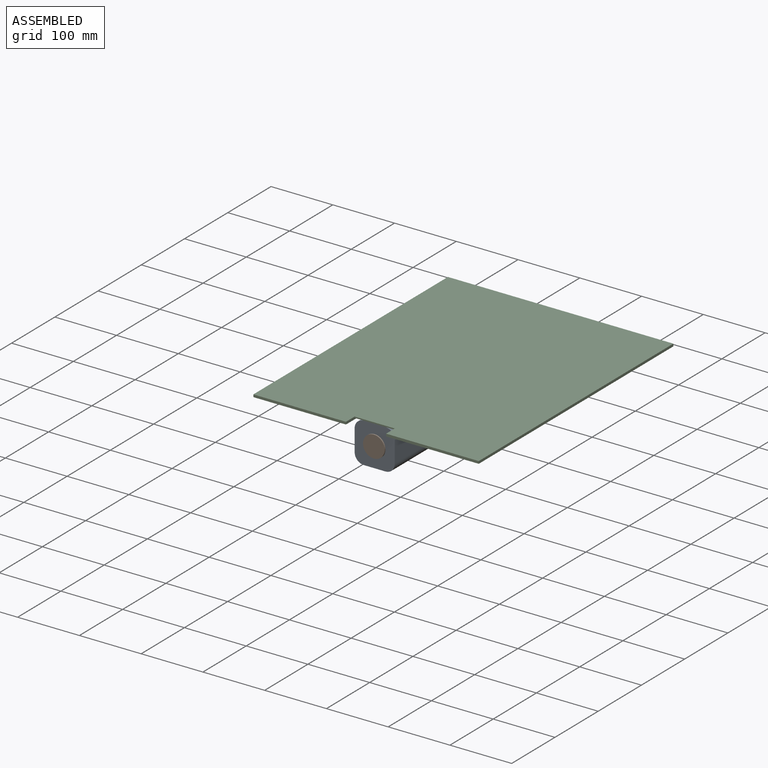
[diagram: assembled view]
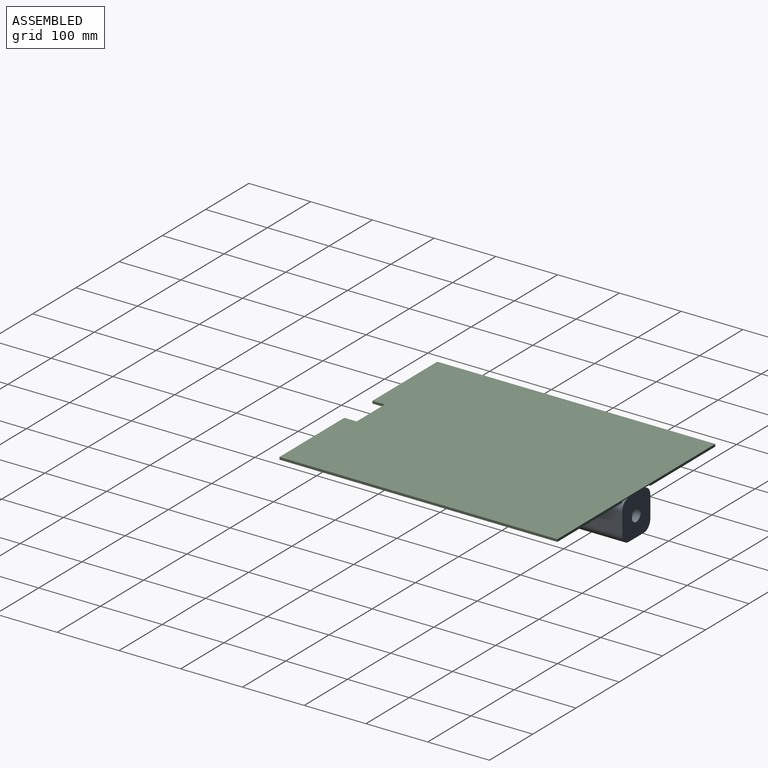
[diagram: assembled view, second angle]
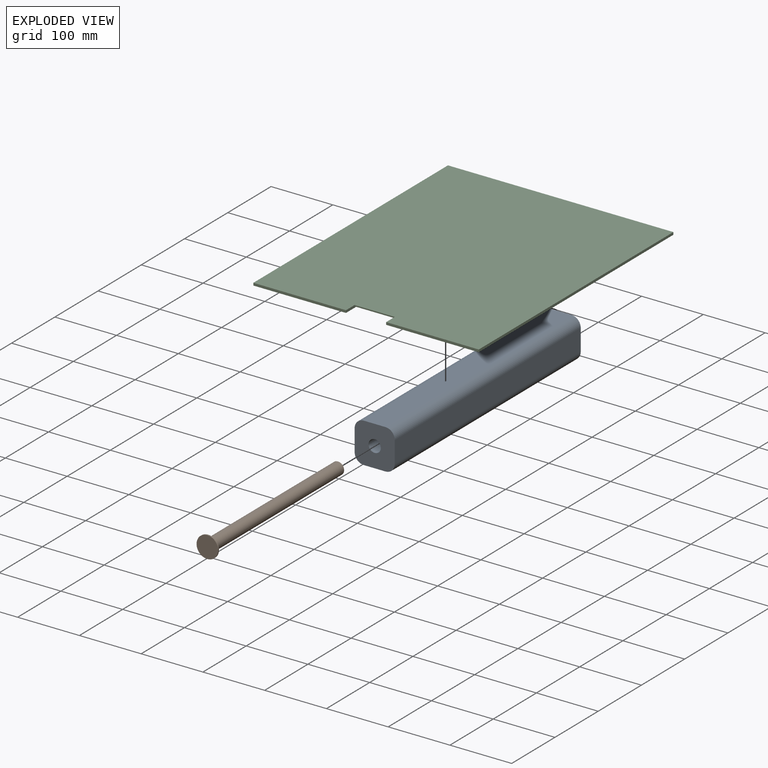
[diagram: exploded view]
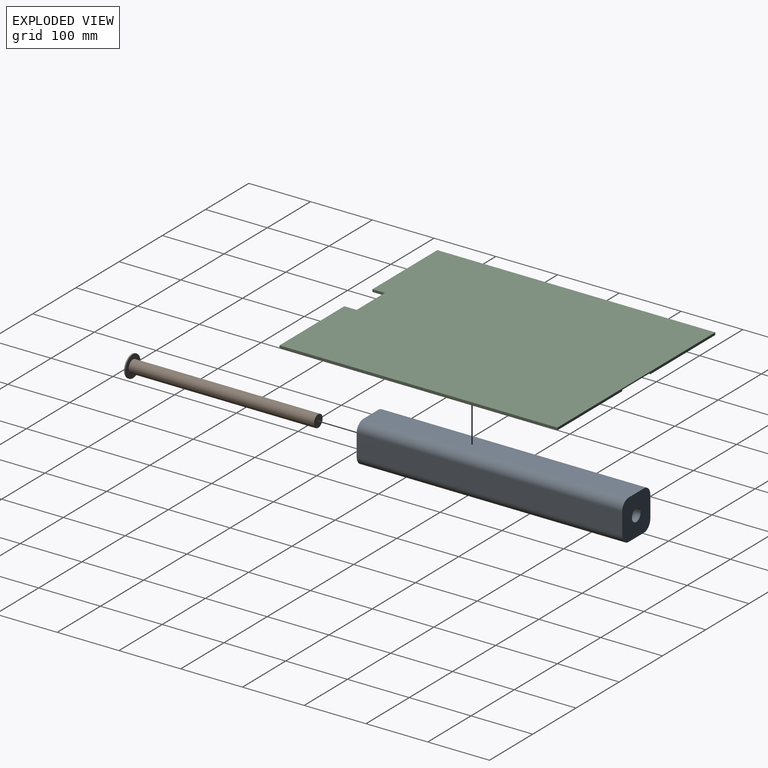
[diagram: exploded view, second angle]
ASSEMBLY  parts=3 mates=2
PART A: 11 faces, bbox 65x430x65 mm
  f0: plane 430x35mm, normal (1,0,0), area 15050mm2, adj f5,f6,f7,f10
  f1: plane 430x35mm, normal (0,0,1), area 15050mm2, adj f5,f6,f7,f8
  f2: plane 430x35mm, normal (-1,0,0), area 15050mm2, adj f5,f6,f8,f9
  f3: plane 430x35mm, normal (0,0,-1), area 15050mm2, adj f5,f6,f9,f10
  f4: cylinder r=10mm len=430mm, axis (0,1,0), area 27017.7mm2, adj f5,f6
  f5: plane 65x65mm, normal (0,-1,0), area 3717.7mm2, adj f0,f1,f2,f3,f4,f7,f8,f9
  f6: plane 65x65mm, normal (0,1,0), area 3717.7mm2, adj f0,f1,f2,f3,f4,f7,f8,f9
  f7: cylinder r=15mm len=430mm, axis (0,-1,0), area 10131.6mm2, adj f0,f1,f5,f6
  f8: cylinder r=15mm len=430mm, axis (0,1,0), area 10131.6mm2, adj f1,f2,f5,f6
  f9: cylinder r=15mm len=430mm, axis (0,-1,0), area 10131.6mm2, adj f2,f3,f5,f6
  f10: cylinder r=15mm len=430mm, axis (0,1,0), area 10131.6mm2, adj f0,f3,f5,f6
PART B: 5 faces, bbox 35x302x35 mm
  f0: cylinder r=10mm len=300mm, axis (0,1,0), area 18849.6mm2, adj f1,f4
  f1: plane 20x20mm, normal (0,1,0), area 314.2mm2, adj f0
  f2: cylinder r=17.5mm len=35mm, axis (0,1,0), area 219.9mm2, adj f3,f4
  f3: plane 35x35mm, normal (0,-1,0), area 962.1mm2, adj f2
  f4: plane 35x35mm, normal (0,1,0), area 648mm2, adj f0,f2
PART C: 12 faces, bbox 365x450x4 mm
  f0: plane 430x65mm, normal (0,0,-1), area 27950mm2, adj f1,f2,f3,f6
  f1: plane 450x4mm, normal (1,0,0), area 940mm2, adj f0,f2,f6,f8,f9,f10
  f2: plane 65x2mm, normal (0,-1,0), area 130mm2, adj f0,f1,f3,f9
  f3: plane 450x4mm, normal (-1,0,0), area 940mm2, adj f0,f2,f4,f6,f9,f11
  f4: plane 150x4mm, normal (0,-1,0), area 600mm2, adj f3,f5,f9,f11
  f5: plane 450x4mm, normal (1,0,0), area 1800mm2, adj f4,f6,f9,f11
  f6: plane 365x4mm, normal (0,1,0), area 1330mm2, adj f0,f1,f3,f5,f7,f9,f10,f11
  f7: plane 450x4mm, normal (-1,0,0), area 1800mm2, adj f6,f8,f9,f10
  f8: plane 150x4mm, normal (0,-1,0), area 600mm2, adj f1,f7,f9,f10
  f9: plane 450x365mm, normal (0,0,1), area 162950mm2, adj f1,f2,f3,f4,f5,f6,f7,f8
  f10: plane 450x150mm, normal (0,0,-1), area 67500mm2, adj f1,f6,f7,f8
  f11: plane 450x150mm, normal (0,0,-1), area 67500mm2, adj f3,f4,f5,f6
PLACE A t=(-269.29,69.1,-139.03)mm
PLACE B t=(-269.29,369.1,-139.03)mm
PLACE C t=(-269.29,69.1,-106.53)mm
MATE cylindrical B.f0 <-> A.f4  axis (0,1,0) through (-269.29,-60.9,-139.03)mm
MATE fastened A.f1 <-> C.f0  axis (0,0,1) through (-269.29,-145.9,-106.53)mm
